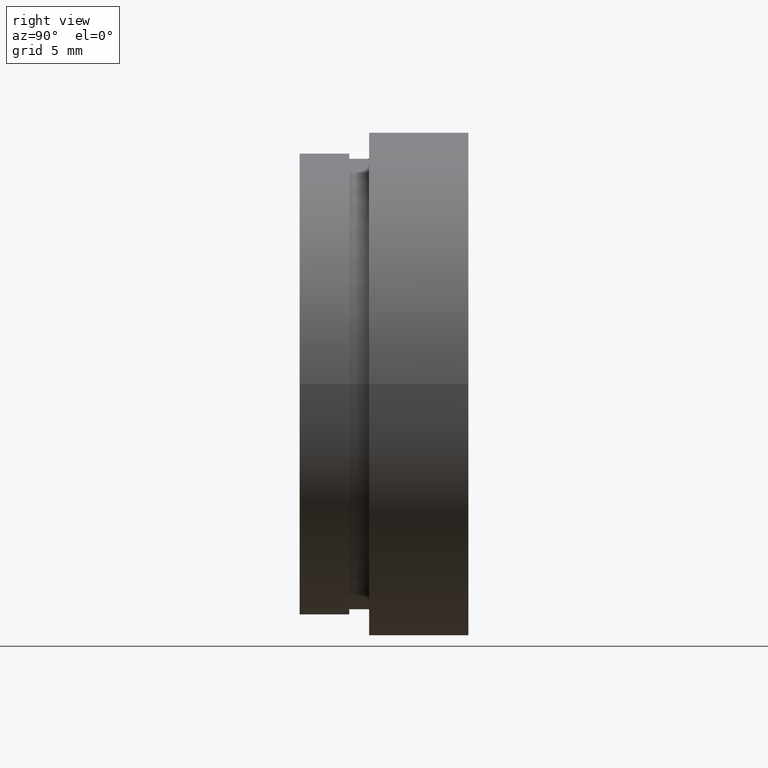
[diagram: clean part render]
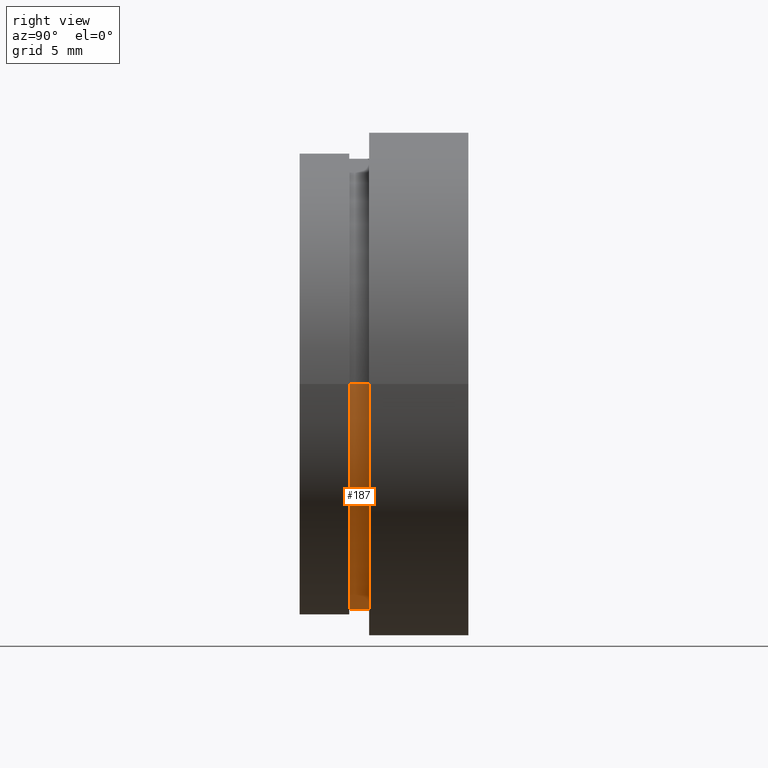
[diagram: same view with one face highlighted and labeled with its STEP entity id]
A machine part, right view. The second image highlights one B-rep face of the part: STEP entity #187.
In plain terms, the highlighted cylindrical surface (partial cylindrical patch) has radius 11.35 mm, axis along (-0, 1, -0).
Its self-contained STEP definition (entity closure, byte-faithful):
#12 = AXIS2_PLACEMENT_3D ( 'NONE', #189, #54, #19 ) ;
#17 = VERTEX_POINT ( 'NONE', #157 ) ;
#19 = DIRECTION ( 'NONE',  ( -1.000000000000000000, 0.0000000000000000000, 0.0000000000000000000 ) ) ;
#30 = ORIENTED_EDGE ( 'NONE', *, *, #215, .T. ) ;
#36 = VERTEX_POINT ( 'NONE', #160 ) ;
#40 = LINE ( 'NONE', #301, #126 ) ;
#54 = DIRECTION ( 'NONE',  ( -1.224646799147351000E-016, 1.000000000000000000, -0.0000000000000000000 ) ) ;
#65 = ORIENTED_EDGE ( 'NONE', *, *, #77, .T. ) ;
#77 = EDGE_CURVE ( 'NONE', #17, #108, #244, .T. ) ;
#86 = CARTESIAN_POINT ( 'NONE',  ( 1.706114563249712500E-015, 2.954535588880332900, 0.0000000000000000000 ) ) ;
#100 = DIRECTION ( 'NONE',  ( -1.224646799147351000E-016, 1.000000000000000000, -0.0000000000000000000 ) ) ;
#105 = AXIS2_PLACEMENT_3D ( 'NONE', #86, #320, #384 ) ;
#108 = VERTEX_POINT ( 'NONE', #243 ) ;
#126 = VECTOR ( 'NONE', #100, 1000.000000000000000 ) ;
#157 = CARTESIAN_POINT ( 'NONE',  ( 11.35000000000000300, 1.954535588880335100, 1.389974117032246300E-015 ) ) ;
#160 = CARTESIAN_POINT ( 'NONE',  ( -11.34999999999999800, 2.954535588880331500, 0.0000000000000000000 ) ) ;
#171 = CARTESIAN_POINT ( 'NONE',  ( 11.35000000000000000, 16.88601823708207700, 1.389974117032245900E-015 ) ) ;
#187 = ADVANCED_FACE ( 'NONE', ( #292 ), #386, .T. ) ;
#189 = CARTESIAN_POINT ( 'NONE',  ( 0.0000000000000000000, 16.88601823708207700, 0.0000000000000000000 ) ) ;
#205 = DIRECTION ( 'NONE',  ( -1.224646799147351000E-016, 1.000000000000000000, -0.0000000000000000000 ) ) ;
#207 = ORIENTED_EDGE ( 'NONE', *, *, #319, .F. ) ;
#209 = AXIS2_PLACEMENT_3D ( 'NONE', #277, #223, #389 ) ;
#211 = CIRCLE ( 'NONE', #105, 11.35000000000000000 ) ;
#215 = EDGE_CURVE ( 'NONE', #108, #36, #40, .T. ) ;
#223 = DIRECTION ( 'NONE',  ( -1.224646799147351000E-016, 1.000000000000000000, -0.0000000000000000000 ) ) ;
#226 = ORIENTED_EDGE ( 'NONE', *, *, #249, .F. ) ;
#231 = EDGE_LOOP ( 'NONE', ( #226, #65, #30, #207 ) ) ;
#243 = CARTESIAN_POINT ( 'NONE',  ( -11.35000000000000000, 1.954535588880332400, 0.0000000000000000000 ) ) ;
#244 = CIRCLE ( 'NONE', #209, 11.35000000000000100 ) ;
#249 = EDGE_CURVE ( 'NONE', #17, #262, #416, .T. ) ;
#252 = CARTESIAN_POINT ( 'NONE',  ( 11.35000000000000100, 2.954535588880334200, 1.389974117032245900E-015 ) ) ;
#262 = VERTEX_POINT ( 'NONE', #252 ) ;
#277 = CARTESIAN_POINT ( 'NONE',  ( 1.828579243164447600E-015, 1.954535588880333700, 0.0000000000000000000 ) ) ;
#292 = FACE_OUTER_BOUND ( 'NONE', #231, .T. ) ;
#301 = CARTESIAN_POINT ( 'NONE',  ( -11.35000000000000000, 16.88601823708207700, 0.0000000000000000000 ) ) ;
#319 = EDGE_CURVE ( 'NONE', #262, #36, #211, .T. ) ;
#320 = DIRECTION ( 'NONE',  ( -1.224646799147351000E-016, 1.000000000000000000, -0.0000000000000000000 ) ) ;
#331 = VECTOR ( 'NONE', #205, 1000.000000000000000 ) ;
#384 = DIRECTION ( 'NONE',  ( -1.000000000000000000, -1.146293045799652200E-016, 0.0000000000000000000 ) ) ;
#386 = CYLINDRICAL_SURFACE ( 'NONE', #12, 11.35000000000000000 ) ;
#389 = DIRECTION ( 'NONE',  ( -1.000000000000000000, -1.146293045799652200E-016, 0.0000000000000000000 ) ) ;
#416 = LINE ( 'NONE', #171, #331 ) ;